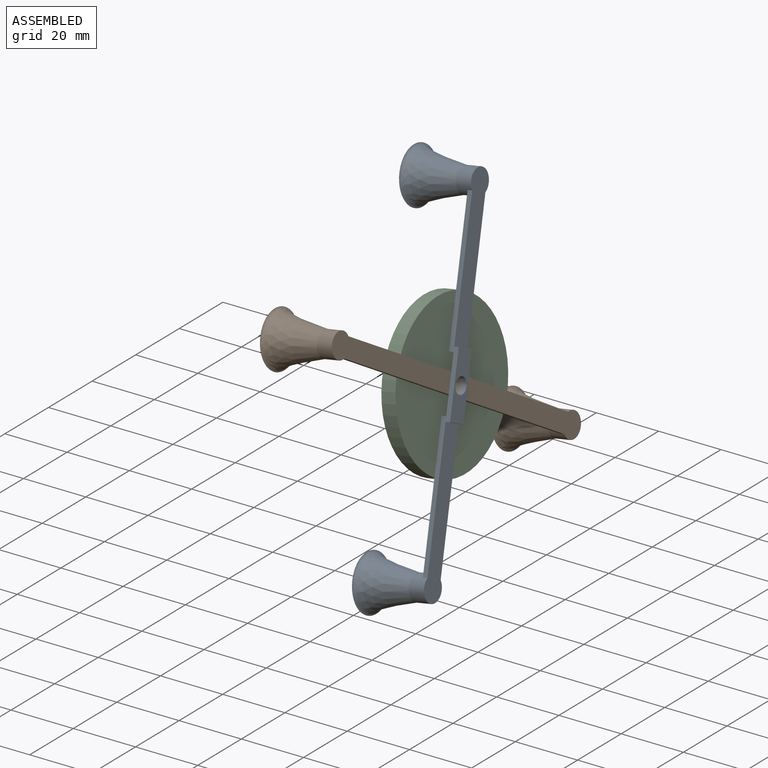
[diagram: assembled view]
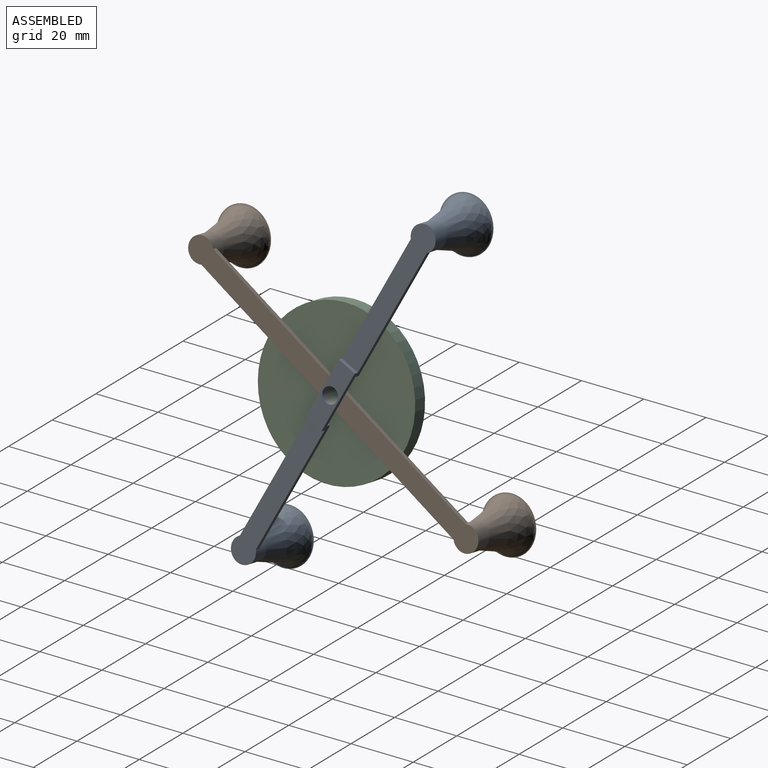
[diagram: assembled view, second angle]
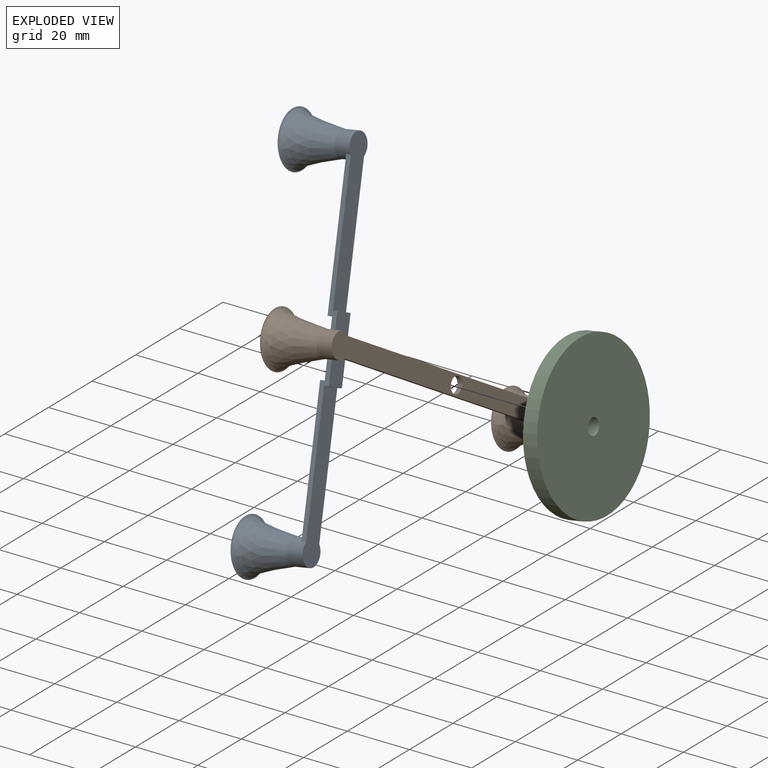
[diagram: exploded view]
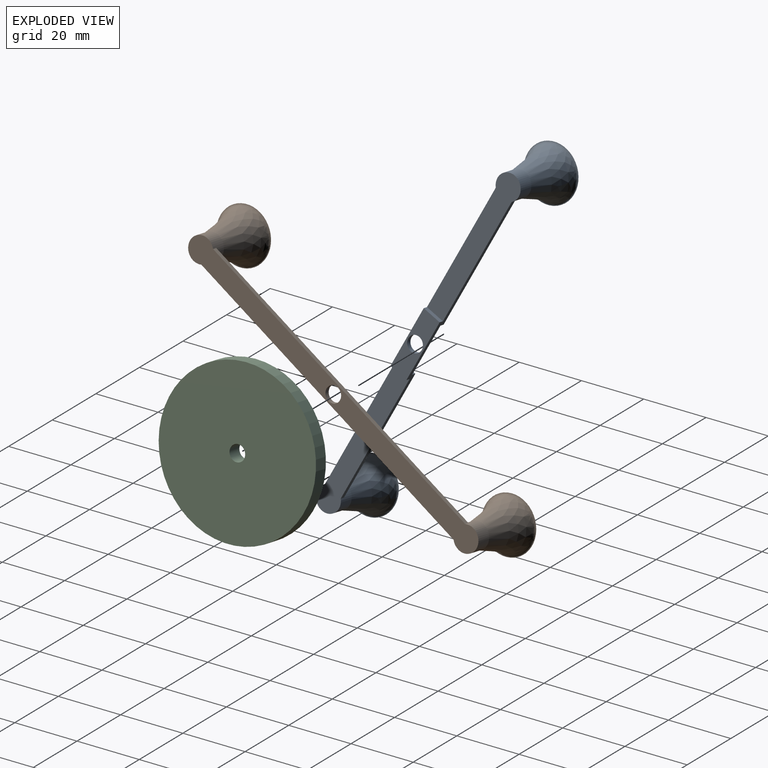
[diagram: exploded view, second angle]
ASSEMBLY  parts=3 mates=2
PART A: 19 faces, bbox 17.5x125.5x21.5 mm
  f0: plane 42.85x6mm, normal (0,0,1), area 251.5mm2, adj f2,f3,f4,f16
  f1: plane 42.85x6mm, normal (0,0,1), area 251.5mm2, adj f3,f4,f7,f8
  f2: plane 6x1.5mm, normal (0,1,0), area 9mm2, adj f0,f3,f4,f9
  f3: plane 102.71x3mm, normal (-1,0,0), area 158.6mm2, adj f0,f1,f2,f5,f6,f7,f8,f9
  f4: plane 102.71x3mm, normal (1,0,0), area 158.6mm2, adj f0,f1,f2,f5,f6,f7,f8,f9
  f5: plane 48x8mm, normal (0,0,-1), area 292.8mm2, adj f3,f4,f11,f16
  f6: plane 48x8mm, normal (0,0,-1), area 292.8mm2, adj f3,f4,f7,f10
  f7: cylinder r=4mm len=8mm, axis (0,0,-1), area 115.5mm2, adj f1,f3,f4,f6,f15
  f8: plane 6x1.5mm, normal (0,-1,0), area 9mm2, adj f1,f3,f4,f9
  f9: plane 17x6mm, normal (0,0,1), area 82.4mm2, adj f2,f3,f4,f8,f12
  f10: plane 6x1.5mm, normal (0,1,0), area 9mm2, adj f3,f4,f6,f13
  f11: plane 6x1.5mm, normal (0,-1,0), area 9mm2, adj f3,f4,f5,f13
  f12: cylinder r=2.5mm len=5mm, axis (0,0,1), area 23.6mm2, adj f9,f13
  f13: plane 20x6mm, normal (0,0,-1), area 100.4mm2, adj f3,f4,f10,f11,f12
  f14: plane 17.5x17.5mm, normal (0,0,1), area 240.6mm2, adj f15
  f15: bspline ~17.5x17.5mm, area 591.5mm2, adj f7,f14
  f16: cylinder r=4mm len=8mm, axis (0,0,-1), area 115.5mm2, adj f0,f3,f4,f5,f18
  f17: plane 17.5x17.5mm, normal (0,0,1), area 240.5mm2, adj f18
  f18: bspline ~17.5x17.5mm, area 591.5mm2, adj f16,f17
PART B: 11 faces, bbox 17.5x125.5x20 mm
  f0: plane 102.71x6mm, normal (0,0,1), area 585.4mm2, adj f1,f2,f3,f4,f8
  f1: plane 102.71x1.5mm, normal (1,0,0), area 154.1mm2, adj f0,f2,f5,f8
  f2: cylinder r=4mm len=8mm, axis (0,0,-1), area 115.5mm2, adj f0,f1,f3,f5,f7
  f3: plane 102.71x1.5mm, normal (-1,0,0), area 154.1mm2, adj f0,f2,f5,f8
  f4: cylinder r=2.5mm len=5mm, axis (0,0,-1), area 23.6mm2, adj f0,f5
  f5: plane 116x8mm, normal (0,0,-1), area 685.9mm2, adj f1,f2,f3,f4,f8
  f6: plane 17.5x17.5mm, normal (0,0,1), area 240.6mm2, adj f7
  f7: bspline ~17.5x17.5mm, area 591.5mm2, adj f2,f6
  f8: cylinder r=4mm len=8mm, axis (0,0,-1), area 115.5mm2, adj f0,f1,f3,f5,f10
  f9: plane 17.5x17.5mm, normal (0,0,1), area 240.5mm2, adj f10
  f10: bspline ~17.5x17.5mm, area 591.5mm2, adj f8,f9
PART C: 4 faces, bbox 50.2x50.2x4.6 mm
  f0: cylinder r=2.5mm len=5mm, axis (0,0,-1), area 72.3mm2, adj f2,f3
  f1: cylinder r=25.1mm len=50.2mm, axis (0,0,-1), area 725.5mm2, adj f2,f3
  f2: plane 50.2x50.2mm, normal (0,0,1), area 1959.6mm2, adj f0,f1
  f3: plane 50.2x50.2mm, normal (0,0,-1), area 1959.6mm2, adj f0,f1
PLACE A rot(axis=(0.49,-0.77,-0.41),114.3deg) t=(-17.01,74.42,7.88)mm
PLACE B rot(axis=(-0.26,-0.94,0.22),103.6deg) t=(-10.45,51.26,-29.31)mm
PLACE C rot(axis=(-0.24,-0.95,0.2),102.9deg) t=(-28.88,106.66,66.55)mm fixed
MATE revolute A.f12 <-> C.f0  axis (-0.98,0,-0.17) through (-17.01,74.42,7.88)mm
MATE revolute C.f0 <-> B.f4  axis (0.98,0,0.17) through (-18.49,74.42,7.62)mm
